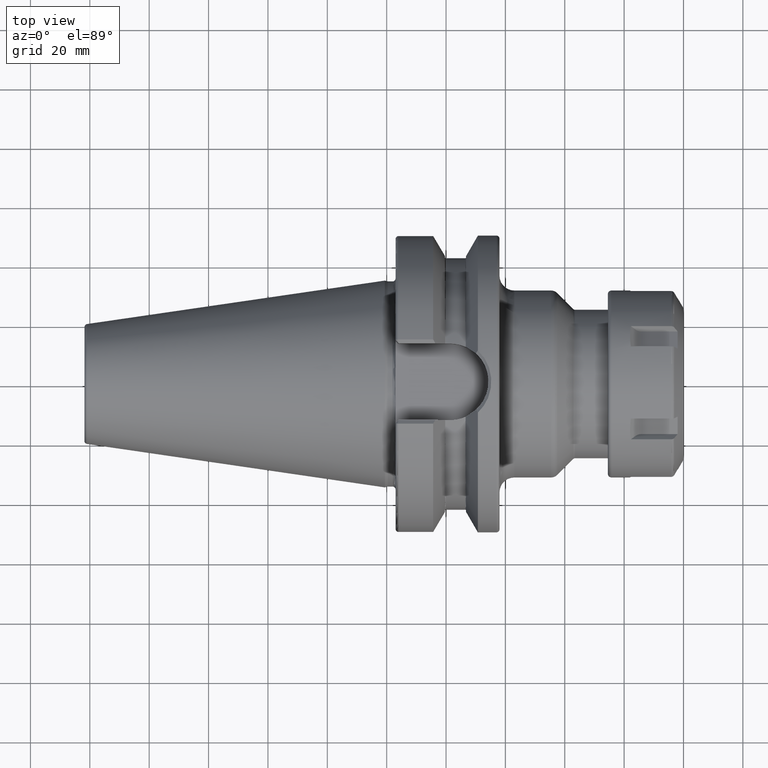
[diagram: clean part render]
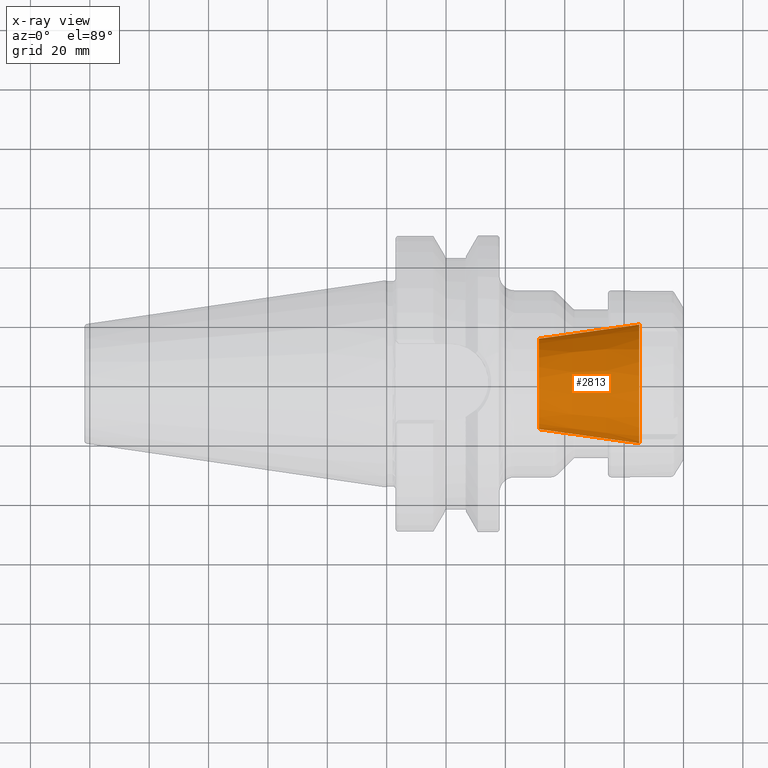
[diagram: x-ray — body ghosted, one internal face saturated and labeled with its STEP entity id]
A machine part, top view, then the same camera in x-ray: the body is ghosted and one INTERNAL B-rep face — a face not visible from any outside direction — is saturated and labeled: STEP entity #2813.
In plain terms, the highlighted conical surface has half-angle 8 deg.
Its self-contained STEP definition (entity closure, byte-faithful):
#958=CARTESIAN_POINT('',(8.51E1,0.E0,0.E0));
#959=DIRECTION('',(1.E0,0.E0,0.E0));
#960=DIRECTION('',(0.E0,1.E0,0.E0));
#961=AXIS2_PLACEMENT_3D('',#958,#959,#960);
#968=DIRECTION('',(-9.902680687416E-1,-1.391731009601E-1,0.E0));
#969=VECTOR('',#968,3.413015853806E1);
#970=CARTESIAN_POINT('',(8.51E1,2.E1,0.E0));
#971=LINE('',#970,#969);
#972=DIRECTION('',(-9.902680687416E-1,1.391731009601E-1,0.E0));
#973=VECTOR('',#972,3.413015853806E1);
#974=CARTESIAN_POINT('',(8.51E1,-2.E1,0.E0));
#975=LINE('',#974,#973);
#989=CARTESIAN_POINT('',(5.130199381868E1,0.E0,0.E0));
#990=DIRECTION('',(1.E0,0.E0,0.E0));
#991=DIRECTION('',(0.E0,1.E0,0.E0));
#992=AXIS2_PLACEMENT_3D('',#989,#990,#991);
#1451=CARTESIAN_POINT('',(5.130199381868E1,1.525E1,0.E0));
#1453=VERTEX_POINT('',#1451);
#1455=CARTESIAN_POINT('',(5.130199381868E1,-1.525E1,0.E0));
#1457=VERTEX_POINT('',#1455);
#1459=CARTESIAN_POINT('',(8.51E1,2.E1,0.E0));
#1460=VERTEX_POINT('',#1459);
#1461=CARTESIAN_POINT('',(8.51E1,-2.E1,0.E0));
#1462=VERTEX_POINT('',#1461);
#2799=CARTESIAN_POINT('',(6.820099690934E1,0.E0,0.E0));
#2800=DIRECTION('',(1.E0,0.E0,0.E0));
#2801=DIRECTION('',(0.E0,-1.E0,0.E0));
#2802=AXIS2_PLACEMENT_3D('',#2799,#2800,#2801);
#2803=CONICAL_SURFACE('',#2802,1.7625E1,8.E0);
#2805=ORIENTED_EDGE('',*,*,#2804,.T.);
#2807=ORIENTED_EDGE('',*,*,#2806,.T.);
#2809=ORIENTED_EDGE('',*,*,#2808,.F.);
#2810=ORIENTED_EDGE('',*,*,#2792,.F.);
#2811=EDGE_LOOP('',(#2805,#2807,#2809,#2810));
#2812=FACE_OUTER_BOUND('',#2811,.F.);
#2813=ADVANCED_FACE('',(#2812),#2803,.F.);
#962=CIRCLE('',#961,2.E1);
#993=CIRCLE('',#992,1.525E1);
#2792=EDGE_CURVE('',#1460,#1462,#962,.T.);
#2804=EDGE_CURVE('',#1460,#1453,#971,.T.);
#2806=EDGE_CURVE('',#1453,#1457,#993,.T.);
#2808=EDGE_CURVE('',#1462,#1457,#975,.T.);